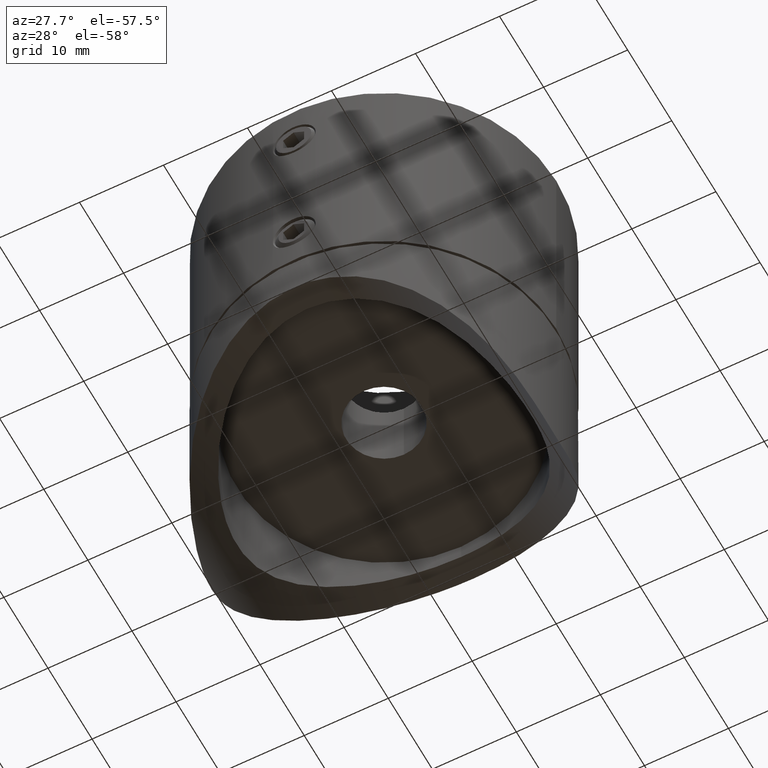
[diagram: clean part render]
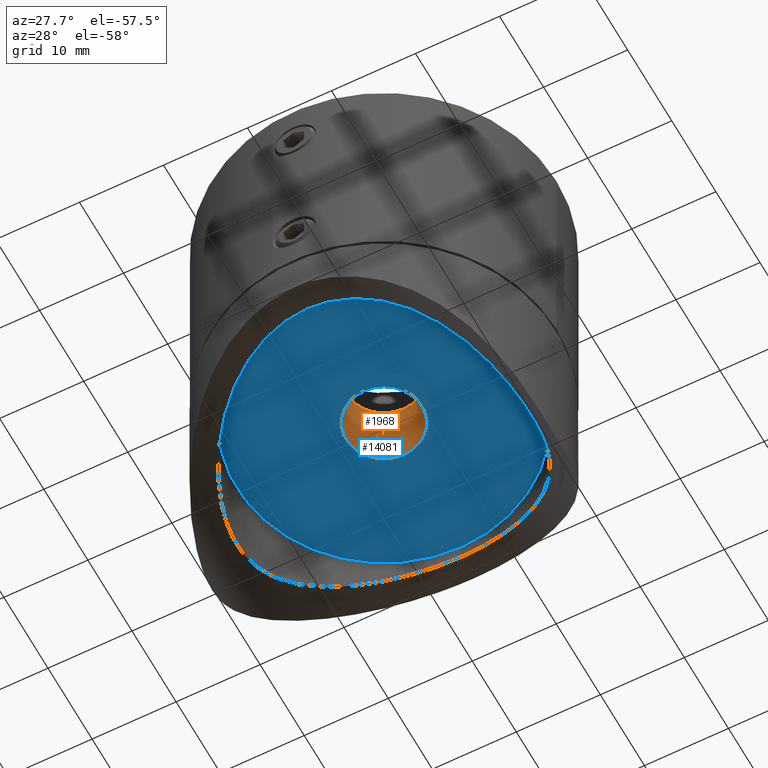
[diagram: same view with the hole feature highlighted: cylindrical wall and planar end face, labeled with their STEP entity ids]
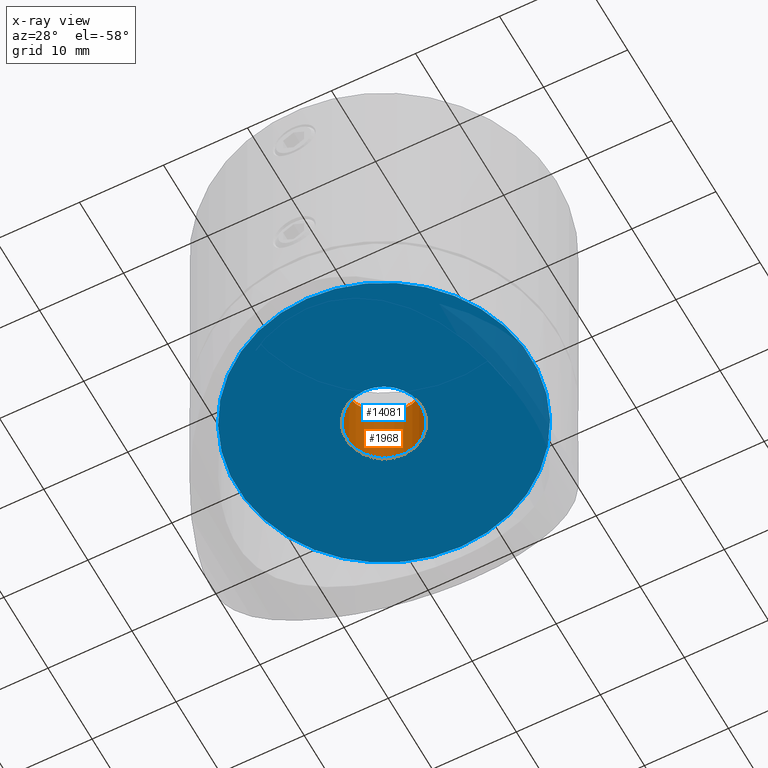
[diagram: x-ray of the same camera — body ghosted, the hole faces saturated]
A machine part, auxiliary view. The highlighted faces form one hole feature of diameter 9 mm: the cylindrical wall (entity #1968, orange) and its adjacent planar end face (entity #14081, blue) — they share a circular edge in the B-rep.
The next image is the same camera in x-ray (body ghosted, the hole faces saturated) — the bore reads through the body.
Wall:
#532 = CIRCLE ( 'NONE', #2554, 4.499999999999998224 ) ;
#620 = EDGE_LOOP ( 'NONE', ( #3777 ) ) ;
#1845 = FACE_OUTER_BOUND ( 'NONE', #620, .T. ) ;
#1968 = ADVANCED_FACE ( 'NONE', ( #13358, #1845 ), #4462, .F. ) ;
#2554 = AXIS2_PLACEMENT_3D ( 'NONE', #12426, #11288, #13653 ) ;
#3777 = ORIENTED_EDGE ( 'NONE', *, *, #16198, .F. ) ;
#4462 = CYLINDRICAL_SURFACE ( 'NONE', #6693, 4.499999999999999112 ) ;
#6613 = CARTESIAN_POINT ( 'NONE',  ( 0.000000000000000000, 4.499999999999998224, 2.000000000000000000 ) ) ;
#6625 = DIRECTION ( 'NONE',  ( 0.000000000000000000, 1.000000000000000000, 1.156482317317871478E-16 ) ) ;
#6693 = AXIS2_PLACEMENT_3D ( 'NONE', #12882, #14364, #6625 ) ;
#7014 = EDGE_LOOP ( 'NONE', ( #12656 ) ) ;
#9236 = AXIS2_PLACEMENT_3D ( 'NONE', #15414, #10395, #10229 ) ;
#10229 = DIRECTION ( 'NONE',  ( 0.000000000000000000, 1.000000000000000000, 0.000000000000000000 ) ) ;
#10395 = DIRECTION ( 'NONE',  ( -0.000000000000000000, 1.156482317317871478E-16, -1.000000000000000000 ) ) ;
#10995 = CIRCLE ( 'NONE', #9236, 4.500000000000000000 ) ;
#11200 = EDGE_CURVE ( 'NONE', #15209, #15209, #532, .T. ) ;
#11288 = DIRECTION ( 'NONE',  ( -0.000000000000000000, 1.156482317317871478E-16, -1.000000000000000000 ) ) ;
#12198 = VERTEX_POINT ( 'NONE', #14459 ) ;
#12426 = CARTESIAN_POINT ( 'NONE',  ( 0.000000000000000000, -2.312964634635742464E-16, 1.999999999999999556 ) ) ;
#12656 = ORIENTED_EDGE ( 'NONE', *, *, #11200, .T. ) ;
#12882 = CARTESIAN_POINT ( 'NONE',  ( 0.000000000000000000, 0.000000000000000000, 0.000000000000000000 ) ) ;
#13358 = FACE_OUTER_BOUND ( 'NONE', #7014, .T. ) ;
#13653 = DIRECTION ( 'NONE',  ( 0.000000000000000000, 1.000000000000000000, 9.637352644315598941E-17 ) ) ;
#14364 = DIRECTION ( 'NONE',  ( -0.000000000000000000, 1.156482317317871478E-16, -1.000000000000000000 ) ) ;
#14459 = CARTESIAN_POINT ( 'NONE',  ( 0.000000000000000000, 4.499999999999999112, 10.99999999999995026 ) ) ;
#15209 = VERTEX_POINT ( 'NONE', #6613 ) ;
#15414 = CARTESIAN_POINT ( 'NONE',  ( 0.000000000000000000, -1.272130549049652882E-15, 10.99999999999995026 ) ) ;
#16198 = EDGE_CURVE ( 'NONE', #12198, #12198, #10995, .T. ) ;
End face:
#101 = ORIENTED_EDGE ( 'NONE', *, *, #15034, .T. ) ;
#161 = DIRECTION ( 'NONE',  ( -0.000000000000000000, 1.156482317317871478E-16, -1.000000000000000000 ) ) ;
#199 = EDGE_LOOP ( 'NONE', ( #101 ) ) ;
#532 = CIRCLE ( 'NONE', #2554, 4.499999999999998224 ) ;
#2554 = AXIS2_PLACEMENT_3D ( 'NONE', #12426, #11288, #13653 ) ;
#3364 = ORIENTED_EDGE ( 'NONE', *, *, #11200, .F. ) ;
#5136 = VERTEX_POINT ( 'NONE', #9335 ) ;
#6613 = CARTESIAN_POINT ( 'NONE',  ( 0.000000000000000000, 4.499999999999998224, 2.000000000000000000 ) ) ;
#9005 = CIRCLE ( 'NONE', #11846, 17.50000000000000000 ) ;
#9099 = CARTESIAN_POINT ( 'NONE',  ( 0.000000000000000000, -2.312964634635740492E-16, 1.999999999999997780 ) ) ;
#9186 = PLANE ( 'NONE',  #15703 ) ;
#9335 = CARTESIAN_POINT ( 'NONE',  ( 0.000000000000000000, 17.50000000000000000, 2.000000000000000000 ) ) ;
#10534 = CARTESIAN_POINT ( 'NONE',  ( 0.000000000000000000, 4.499999999999998224, 1.999999999999999112 ) ) ;
#10600 = DIRECTION ( 'NONE',  ( 0.000000000000000000, 1.000000000000000000, 1.239088197126290817E-16 ) ) ;
#11200 = EDGE_CURVE ( 'NONE', #15209, #15209, #532, .T. ) ;
#11288 = DIRECTION ( 'NONE',  ( -0.000000000000000000, 1.156482317317871478E-16, -1.000000000000000000 ) ) ;
#11834 = FACE_BOUND ( 'NONE', #13367, .T. ) ;
#11846 = AXIS2_PLACEMENT_3D ( 'NONE', #9099, #161, #10600 ) ;
#12426 = CARTESIAN_POINT ( 'NONE',  ( 0.000000000000000000, -2.312964634635742464E-16, 1.999999999999999556 ) ) ;
#13150 = DIRECTION ( 'NONE',  ( -0.000000000000000000, 1.156482317317871478E-16, -1.000000000000000000 ) ) ;
#13367 = EDGE_LOOP ( 'NONE', ( #3364 ) ) ;
#13653 = DIRECTION ( 'NONE',  ( 0.000000000000000000, 1.000000000000000000, 9.637352644315598941E-17 ) ) ;
#14081 = ADVANCED_FACE ( 'NONE', ( #15244, #11834 ), #9186, .T. ) ;
#15034 = EDGE_CURVE ( 'NONE', #5136, #5136, #9005, .T. ) ;
#15209 = VERTEX_POINT ( 'NONE', #6613 ) ;
#15244 = FACE_OUTER_BOUND ( 'NONE', #199, .T. ) ;
#15703 = AXIS2_PLACEMENT_3D ( 'NONE', #10534, #13150, #15771 ) ;
#15771 = DIRECTION ( 'NONE',  ( 0.000000000000000000, 1.000000000000000000, 1.156482317317871478E-16 ) ) ;